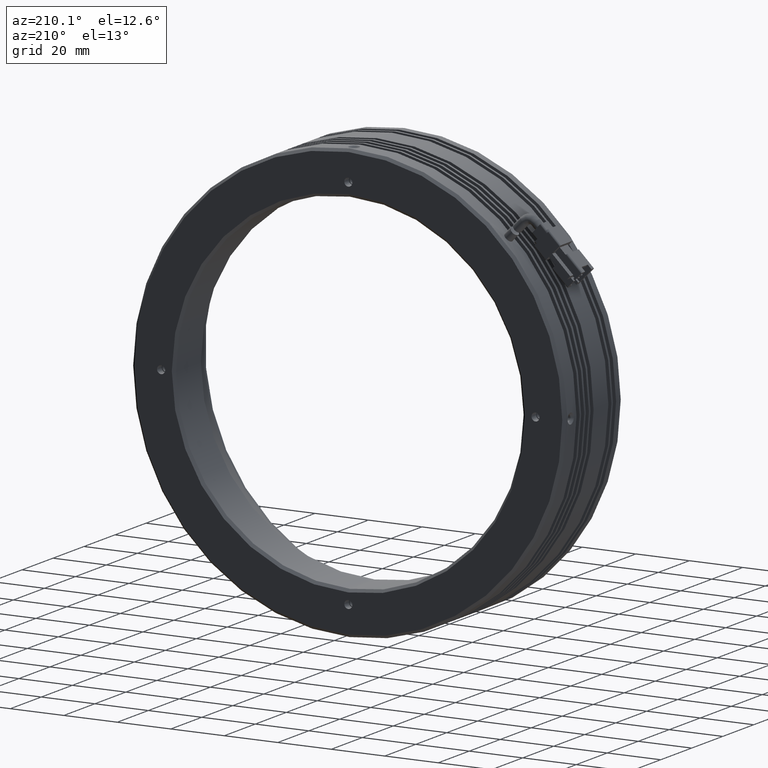
[diagram: clean part render]
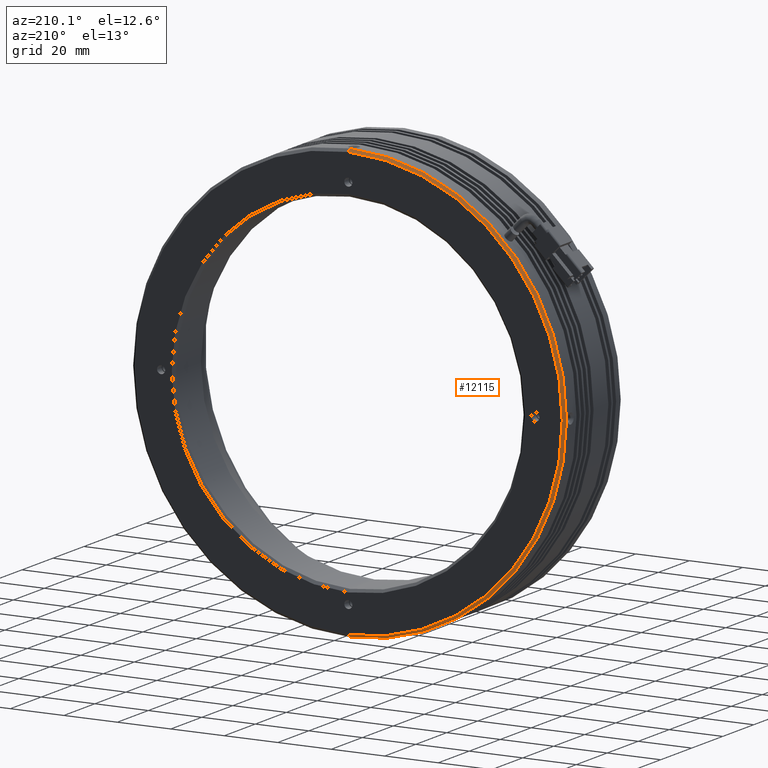
[diagram: same view with one face highlighted and labeled with its STEP entity id]
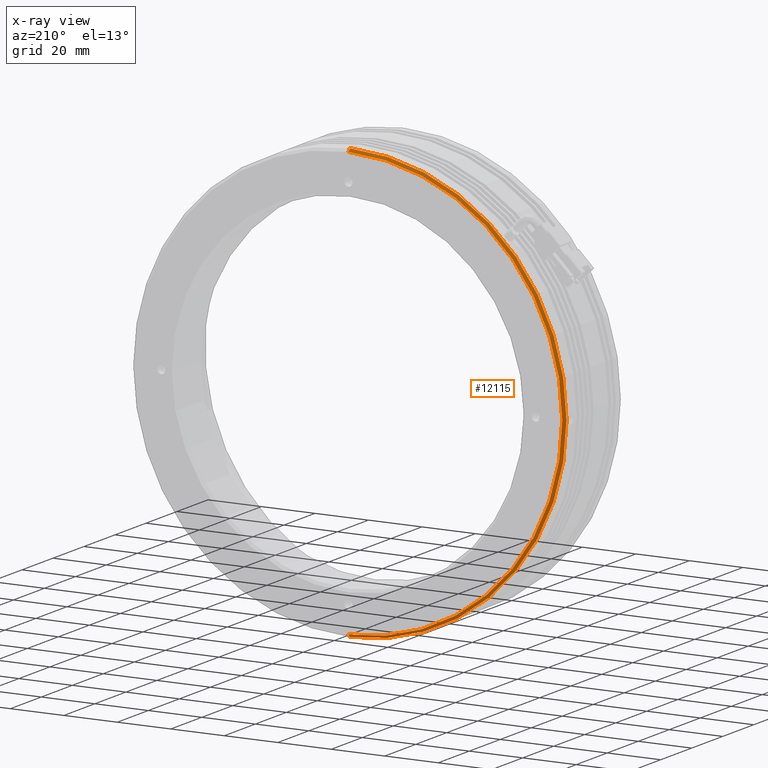
[diagram: x-ray of the same camera — body ghosted, the highlighted face saturated]
A machine part, auxiliary view. The second image highlights one B-rep face of the part: STEP entity #12115.
The next image is the same camera in x-ray: the body ghosted, the highlighted face saturated — about 0% of this face is hidden behind the body in this view.
In plain terms, the highlighted conical surface has half-angle 45 deg.
Its self-contained STEP definition (entity closure, byte-faithful):
#72 = CIRCLE ( 'NONE', #11975, 79.99999999999998600 ) ;
#628 = CARTESIAN_POINT ( 'NONE',  ( -9.785022266880036000, 26.87111437184001900, -81.00000000000000000 ) ) ;
#702 = CARTESIAN_POINT ( 'NONE',  ( -9.785022266880025300, 27.87111437184006100, 79.99999999999998600 ) ) ;
#1255 = DIRECTION ( 'NONE',  ( 0.0000000000000000000, 1.000000000000000000, 0.0000000000000000000 ) ) ;
#1356 = LINE ( 'NONE', #628, #6531 ) ;
#1828 = LINE ( 'NONE', #12947, #7016 ) ;
#2184 = CARTESIAN_POINT ( 'NONE',  ( -9.785022266880036000, 27.87111437184006100, -79.99999999999998600 ) ) ;
#2700 = CARTESIAN_POINT ( 'NONE',  ( -9.785022266880036000, 26.87111437184001900, -81.00000000000000000 ) ) ;
#2820 = FACE_OUTER_BOUND ( 'NONE', #11139, .T. ) ;
#3186 = ORIENTED_EDGE ( 'NONE', *, *, #6631, .T. ) ;
#4883 = AXIS2_PLACEMENT_3D ( 'NONE', #7460, #1255, #8507 ) ;
#5516 = DIRECTION ( 'NONE',  ( 0.0000000000000000000, -1.000000000000000000, 0.0000000000000000000 ) ) ;
#5560 = DIRECTION ( 'NONE',  ( 8.659560562354813300E-017, -0.7071067811865574500, 0.7071067811865376900 ) ) ;
#5580 = VERTEX_POINT ( 'NONE', #702 ) ;
#5903 = CARTESIAN_POINT ( 'NONE',  ( -9.785022266880036000, 27.87111437184006100, 0.0000000000000000000 ) ) ;
#6531 = VECTOR ( 'NONE', #10902, 999.9999999999998900 ) ;
#6631 = EDGE_CURVE ( 'NONE', #6876, #7714, #13192, .T. ) ;
#6876 = VERTEX_POINT ( 'NONE', #2700 ) ;
#6945 = DIRECTION ( 'NONE',  ( 0.0000000000000000000, 0.0000000000000000000, -1.000000000000000000 ) ) ;
#7016 = VECTOR ( 'NONE', #5560, 999.9999999999998900 ) ;
#7171 = ORIENTED_EDGE ( 'NONE', *, *, #7685, .T. ) ;
#7460 = CARTESIAN_POINT ( 'NONE',  ( -9.785022266880036000, 26.87111437184001900, 0.0000000000000000000 ) ) ;
#7589 = EDGE_CURVE ( 'NONE', #13318, #6876, #1356, .T. ) ;
#7685 = EDGE_CURVE ( 'NONE', #5580, #13318, #72, .T. ) ;
#7714 = VERTEX_POINT ( 'NONE', #7949 ) ;
#7949 = CARTESIAN_POINT ( 'NONE',  ( -9.785022266880025300, 26.87111437184001900, 81.00000000000000000 ) ) ;
#8487 = ORIENTED_EDGE ( 'NONE', *, *, #7589, .T. ) ;
#8507 = DIRECTION ( 'NONE',  ( 0.0000000000000000000, 0.0000000000000000000, -1.000000000000000000 ) ) ;
#8773 = EDGE_CURVE ( 'NONE', #5580, #7714, #1828, .T. ) ;
#8832 = ORIENTED_EDGE ( 'NONE', *, *, #8773, .F. ) ;
#9106 = CONICAL_SURFACE ( 'NONE', #10285, 81.00000000000000000, 0.7853981633974344000 ) ;
#9674 = DIRECTION ( 'NONE',  ( 0.0000000000000000000, 0.0000000000000000000, -1.000000000000000000 ) ) ;
#10285 = AXIS2_PLACEMENT_3D ( 'NONE', #10617, #5516, #9674 ) ;
#10617 = CARTESIAN_POINT ( 'NONE',  ( -9.785022266880036000, 26.87111437184001900, 0.0000000000000000000 ) ) ;
#10902 = DIRECTION ( 'NONE',  ( 0.0000000000000000000, -0.7071067811865574500, -0.7071067811865376900 ) ) ;
#11139 = EDGE_LOOP ( 'NONE', ( #8832, #7171, #8487, #3186 ) ) ;
#11975 = AXIS2_PLACEMENT_3D ( 'NONE', #5903, #13115, #6945 ) ;
#12115 = ADVANCED_FACE ( 'NONE', ( #2820 ), #9106, .T. ) ;
#12947 = CARTESIAN_POINT ( 'NONE',  ( -9.785022266880025300, 26.87111437184001900, 81.00000000000000000 ) ) ;
#13115 = DIRECTION ( 'NONE',  ( 0.0000000000000000000, -1.000000000000000000, 0.0000000000000000000 ) ) ;
#13192 = CIRCLE ( 'NONE', #4883, 81.00000000000000000 ) ;
#13318 = VERTEX_POINT ( 'NONE', #2184 ) ;